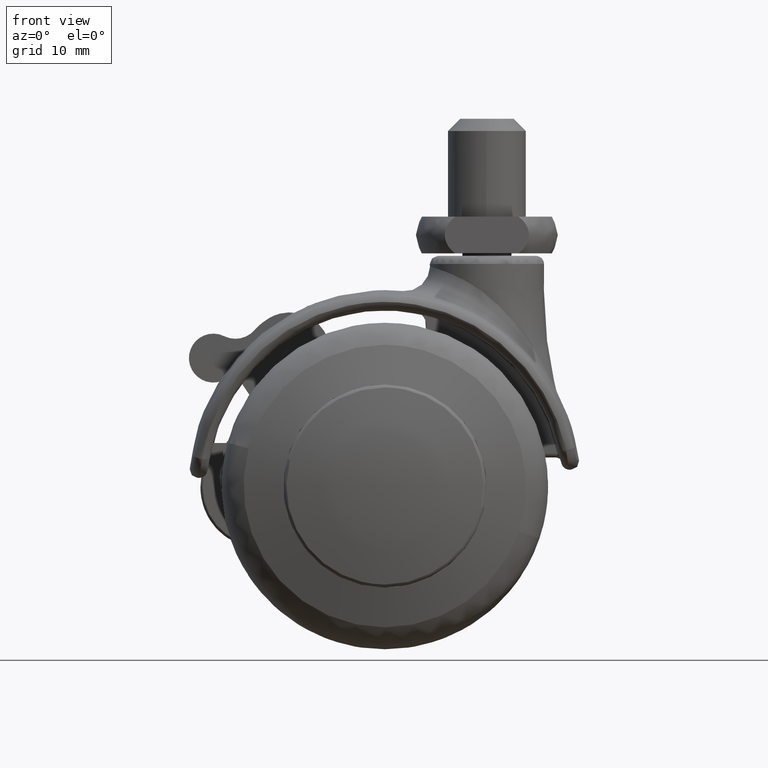
[diagram: clean part render]
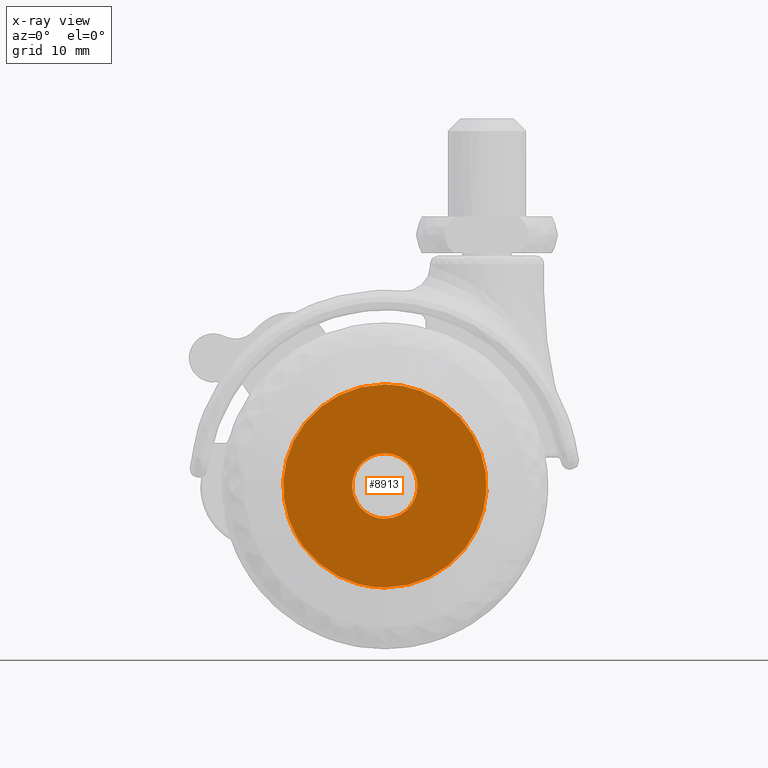
[diagram: x-ray — body ghosted, one internal face saturated and labeled with its STEP entity id]
A machine part, front view, then the same camera in x-ray: the body is ghosted and one INTERNAL B-rep face — a face not visible from any outside direction — is saturated and labeled: STEP entity #8913.
In plain terms, the highlighted face is a freeform B-spline surface patch.
Its self-contained STEP definition (entity closure, byte-faithful):
#6386=CARTESIAN_POINT('',(3.969064980389089,-16.0,0.496511008385448));
#6387=VERTEX_POINT('',#6386);
#6388=CARTESIAN_POINT('',(0.0,-16.0,3.999999999999998));
#6389=VERTEX_POINT('',#6388);
#6390=CARTESIAN_POINT('',(3.969064980389089,-16.0,0.496511008385448));
#6391=CARTESIAN_POINT('',(3.530795297053538,-15.999999999999998,3.999999999999998));
#6392=CARTESIAN_POINT('',(0.0,-16.0,3.999999999999998));
#6400=(BOUNDED_CURVE()B_SPLINE_CURVE(2,(#6390,#6391,#6392),.UNSPECIFIED.,.F.,.U.)B_SPLINE_CURVE_WITH_KNOTS((3,3),(0.271473886483420,0.500000000000000),.UNSPECIFIED.)CURVE()GEOMETRIC_REPRESENTATION_ITEM()RATIONAL_B_SPLINE_CURVE((0.954005512726123,0.732265004116801,1.0))REPRESENTATION_ITEM(''));
#6401=EDGE_CURVE('',#6387,#6389,#6400,.T.);
#6442=CARTESIAN_POINT('',(-3.999847692255229,-16.0,-0.034906142160297));
#6443=VERTEX_POINT('',#6442);
#6449=CARTESIAN_POINT('',(0.0,-16.0,3.999999999999998));
#6450=CARTESIAN_POINT('',(-4.000000000000000,-15.999999999999998,3.999999999999998));
#6451=CARTESIAN_POINT('',(-4.0,-16.0,-1.500143E-015));
#6452=CARTESIAN_POINT('',(-4.000000000000000,-16.000000000000004,-0.017453403449608));
#6453=CARTESIAN_POINT('',(-3.999847692255230,-15.999999999999998,-0.034906142160297));
#6461=(BOUNDED_CURVE()B_SPLINE_CURVE(2,(#6449,#6450,#6451,#6452,#6453),.UNSPECIFIED.,.F.,.U.)B_SPLINE_CURVE_WITH_KNOTS((3,2,3),(0.500000000000000,0.750000000000000,0.751539894349677),.UNSPECIFIED.)CURVE()GEOMETRIC_REPRESENTATION_ITEM()RATIONAL_B_SPLINE_CURVE((1.0,0.707106781186548,1.0,0.998195901549162,0.996414028066409))REPRESENTATION_ITEM(''));
#6462=EDGE_CURVE('',#6389,#6443,#6461,.T.);
#6489=CARTESIAN_POINT('',(0.0,-16.0,-4.000000000000002));
#6490=VERTEX_POINT('',#6489);
#6491=CARTESIAN_POINT('',(0.0,-16.0,-4.000000000000002));
#6492=CARTESIAN_POINT('',(4.000000000000000,-15.999999999999998,-4.000000000000003));
#6493=CARTESIAN_POINT('',(4.0,-16.0,-1.500143E-015));
#6494=CARTESIAN_POINT('',(4.000000000000001,-16.000000000000004,0.249219204314337));
#6495=CARTESIAN_POINT('',(3.969064980389089,-16.0,0.496511008385448));
#6503=(BOUNDED_CURVE()B_SPLINE_CURVE(2,(#6491,#6492,#6493,#6494,#6495),.UNSPECIFIED.,.F.,.U.)B_SPLINE_CURVE_WITH_KNOTS((3,2,3),(0.0,0.250000000000000,0.271473886483420),.UNSPECIFIED.)CURVE()GEOMETRIC_REPRESENTATION_ITEM()RATIONAL_B_SPLINE_CURVE((1.0,0.707106781186548,1.0,0.974841777069746,0.954005512726123))REPRESENTATION_ITEM(''));
#6504=EDGE_CURVE('',#6490,#6387,#6503,.T.);
#6506=CARTESIAN_POINT('',(-3.999847692255230,-15.999999999999996,-0.034906142160297));
#6507=CARTESIAN_POINT('',(-3.965244842049187,-16.0,-4.000000000000003));
#6508=CARTESIAN_POINT('',(0.0,-16.0,-4.000000000000002));
#6516=(BOUNDED_CURVE()B_SPLINE_CURVE(2,(#6506,#6507,#6508),.UNSPECIFIED.,.F.,.U.)B_SPLINE_CURVE_WITH_KNOTS((3,3),(0.751539894349678,1.0),.UNSPECIFIED.)CURVE()GEOMETRIC_REPRESENTATION_ITEM()RATIONAL_B_SPLINE_CURVE((0.996414028066407,0.708910879637387,1.0))REPRESENTATION_ITEM(''));
#6517=EDGE_CURVE('',#6443,#6490,#6516,.T.);
#6593=CARTESIAN_POINT('',(10.796160134355009,-16.0,6.200437593694254));
#6594=VERTEX_POINT('',#6593);
#6600=CARTESIAN_POINT('',(0.0,-16.0,12.449999999999999));
#6601=VERTEX_POINT('',#6600);
#6602=CARTESIAN_POINT('',(10.796160134355013,-16.000000000000004,6.200437593694253));
#6603=CARTESIAN_POINT('',(7.206919033266233,-16.000000000000007,12.449999999999999));
#6604=CARTESIAN_POINT('',(0.0,-16.0,12.449999999999999));
#6612=(BOUNDED_CURVE()B_SPLINE_CURVE(2,(#6602,#6603,#6604),.UNSPECIFIED.,.F.,.U.)B_SPLINE_CURVE_WITH_KNOTS((3,3),(0.334920826125750,0.500000000000000),.UNSPECIFIED.)CURVE()GEOMETRIC_REPRESENTATION_ITEM()RATIONAL_B_SPLINE_CURVE((0.868608947245222,0.806597717619621,1.0))REPRESENTATION_ITEM(''));
#6613=EDGE_CURVE('',#6594,#6601,#6612,.T.);
#6615=CARTESIAN_POINT('',(-10.008021136014200,-16.0,-7.405539341672810));
#6616=VERTEX_POINT('',#6615);
#6617=CARTESIAN_POINT('',(0.0,-16.0,12.449999999999999));
#6618=CARTESIAN_POINT('',(-12.450000000000003,-15.999999999999998,12.450000000000003));
#6619=CARTESIAN_POINT('',(-12.449999999999999,-16.0,-1.500143E-015));
#6620=CARTESIAN_POINT('',(-12.450000000000005,-15.999999999999998,-4.105391309654573));
#6621=CARTESIAN_POINT('',(-10.008021136014198,-16.000000000000004,-7.405539341672810));
#6629=(BOUNDED_CURVE()B_SPLINE_CURVE(2,(#6617,#6618,#6619,#6620,#6621),.UNSPECIFIED.,.F.,.U.)B_SPLINE_CURVE_WITH_KNOTS((3,2,3),(0.500000000000000,0.750000000000000,0.852574051712863),.UNSPECIFIED.)CURVE()GEOMETRIC_REPRESENTATION_ITEM()RATIONAL_B_SPLINE_CURVE((1.0,0.707106781186548,1.0,0.879827023308328,0.858267079621938))REPRESENTATION_ITEM(''));
#6630=EDGE_CURVE('',#6601,#6616,#6629,.T.);
#6736=CARTESIAN_POINT('',(0.0,-16.0,-12.449999999999999));
#6737=VERTEX_POINT('',#6736);
#6738=CARTESIAN_POINT('',(-10.008021136014198,-16.000000000000004,-7.405539341672810));
#6739=CARTESIAN_POINT('',(-6.275320000090551,-16.0,-12.449999999999999));
#6740=CARTESIAN_POINT('',(0.0,-16.0,-12.449999999999999));
#6748=(BOUNDED_CURVE()B_SPLINE_CURVE(2,(#6738,#6739,#6740),.UNSPECIFIED.,.F.,.U.)B_SPLINE_CURVE_WITH_KNOTS((3,3),(0.852574051712863,1.0),.UNSPECIFIED.)CURVE()GEOMETRIC_REPRESENTATION_ITEM()RATIONAL_B_SPLINE_CURVE((0.858267079621938,0.827279757878219,1.0))REPRESENTATION_ITEM(''));
#6749=EDGE_CURVE('',#6616,#6737,#6748,.T.);
#6751=CARTESIAN_POINT('',(0.0,-16.0,-12.449999999999999));
#6752=CARTESIAN_POINT('',(12.450000000000003,-15.999999999999998,-12.450000000000003));
#6753=CARTESIAN_POINT('',(12.449999999999999,-16.0,-1.500143E-015));
#6754=CARTESIAN_POINT('',(12.450000000000003,-16.000000000000004,3.320782769943017));
#6755=CARTESIAN_POINT('',(10.796160134355013,-16.000000000000004,6.200437593694253));
#6763=(BOUNDED_CURVE()B_SPLINE_CURVE(2,(#6751,#6752,#6753,#6754,#6755),.UNSPECIFIED.,.F.,.U.)B_SPLINE_CURVE_WITH_KNOTS((3,2,3),(0.0,0.250000000000000,0.334920826125750),.UNSPECIFIED.)CURVE()GEOMETRIC_REPRESENTATION_ITEM()RATIONAL_B_SPLINE_CURVE((1.0,0.707106781186548,1.0,0.900509063566927,0.868608947245222))REPRESENTATION_ITEM(''));
#6764=EDGE_CURVE('',#6737,#6594,#6763,.T.);
#8896=CARTESIAN_POINT('',(-13.689227345598461,-16.0,13.693754717995580));
#8897=CARTESIAN_POINT('',(-13.689227345598461,-16.0,-13.693755608488971));
#8898=CARTESIAN_POINT('',(13.686368416560409,-16.0,13.693754717995580));
#8899=CARTESIAN_POINT('',(13.686368416560409,-16.0,-13.693755608488971));
#8900=B_SPLINE_SURFACE_WITH_KNOTS('',1,1,((#8896,#8898),(#8897,#8899)),.UNSPECIFIED.,.F.,.F.,.U.,(2,2),(2,2),(0.0,27.387510326484549),(0.0,27.375595762158870),.UNSPECIFIED.);
#8901=ORIENTED_EDGE('',*,*,#6749,.F.);
#8902=ORIENTED_EDGE('',*,*,#6630,.F.);
#8903=ORIENTED_EDGE('',*,*,#6613,.F.);
#8904=ORIENTED_EDGE('',*,*,#6764,.F.);
#8905=EDGE_LOOP('',(#8901,#8902,#8903,#8904));
#8906=FACE_OUTER_BOUND('',#8905,.T.);
#8907=ORIENTED_EDGE('',*,*,#6462,.T.);
#8908=ORIENTED_EDGE('',*,*,#6517,.T.);
#8909=ORIENTED_EDGE('',*,*,#6504,.T.);
#8910=ORIENTED_EDGE('',*,*,#6401,.T.);
#8911=EDGE_LOOP('',(#8907,#8908,#8909,#8910));
#8912=FACE_BOUND('',#8911,.T.);
#8913=ADVANCED_FACE('',(#8906,#8912),#8900,.F.);